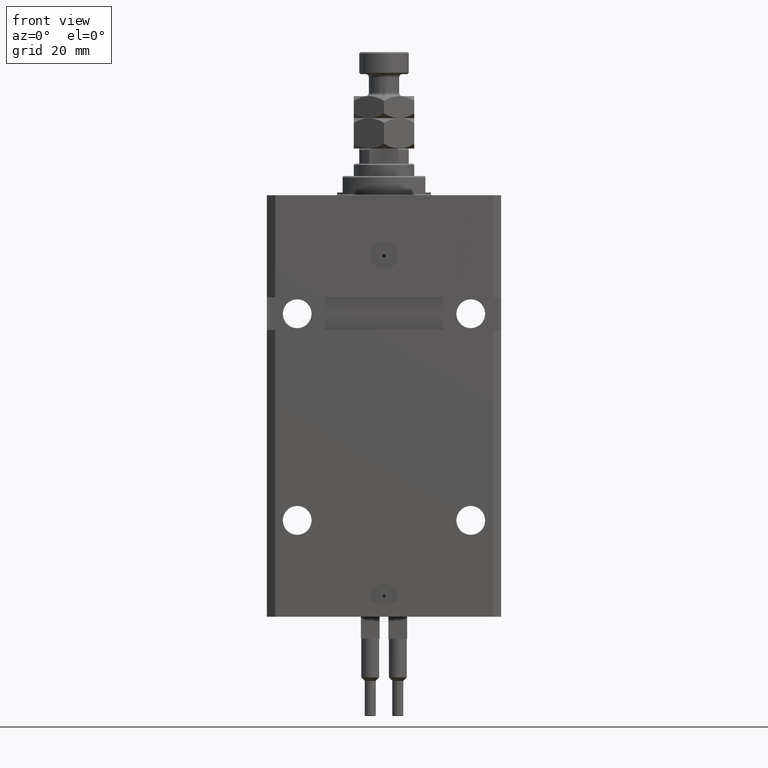
[diagram: clean part render]
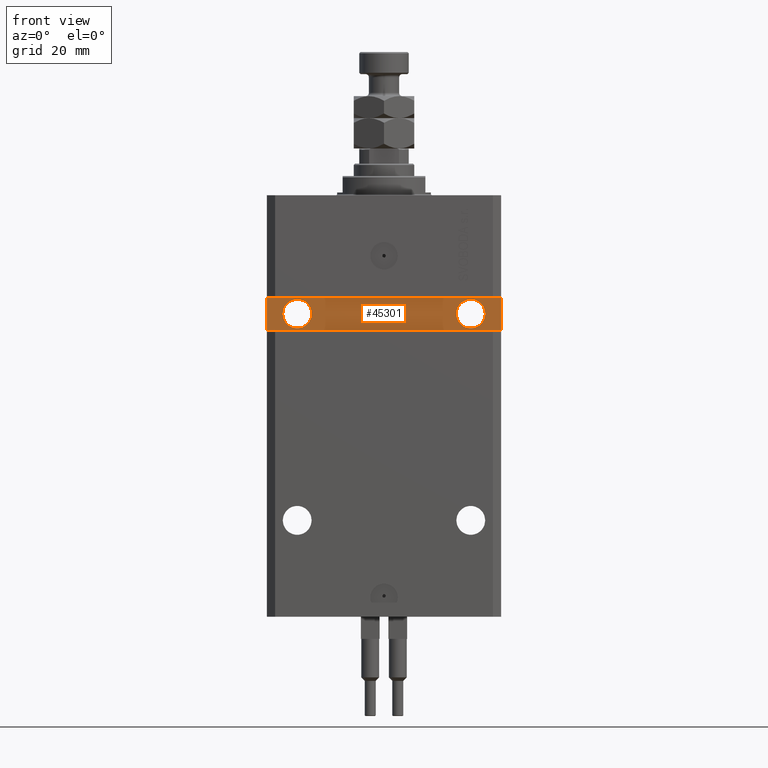
[diagram: same view with one face highlighted and labeled with its STEP entity id]
A machine part, front view. The second image highlights one B-rep face of the part: STEP entity #45301.
In plain terms, the highlighted planar face has unit normal (0, -1, 0).
Its self-contained STEP definition (entity closure, byte-faithful):
#65 = LINE ( 'NONE', #39178, #4987 ) ;
#559 = DIRECTION ( 'NONE',  ( 1.101411730780568590E-16, -1.000000000000000000, 0.000000000000000000 ) ) ;
#1619 = EDGE_LOOP ( 'NONE', ( #10034, #30624 ) ) ;
#2013 = VECTOR ( 'NONE', #2801, 1000.000000000000000 ) ;
#2801 = DIRECTION ( 'NONE',  ( 0.000000000000000000, 0.000000000000000000, -1.000000000000000000 ) ) ;
#2931 = DIRECTION ( 'NONE',  ( 0.000000000000000000, 0.000000000000000000, 1.000000000000000000 ) ) ;
#3793 = DIRECTION ( 'NONE',  ( 1.000000000000000000, 0.000000000000000000, 0.000000000000000000 ) ) ;
#4208 = CARTESIAN_POINT ( 'NONE',  ( 42.50000000000001421, -28.49999999999999289, -37.00000000000000000 ) ) ;
#4448 = LINE ( 'NONE', #4208, #24383 ) ;
#4892 = EDGE_CURVE ( 'NONE', #24375, #17585, #41807, .T. ) ;
#4987 = VECTOR ( 'NONE', #43544, 1000.000000000000000 ) ;
#6589 = AXIS2_PLACEMENT_3D ( 'NONE', #8661, #28859, #20402 ) ;
#6779 = CARTESIAN_POINT ( 'NONE',  ( 42.50000000000001421, -28.49999999999999289, -48.99999999999997868 ) ) ;
#8661 = CARTESIAN_POINT ( 'NONE',  ( 4.790119779726142858E-15, -28.50000000000000000, 0.000000000000000000 ) ) ;
#10034 = ORIENTED_EDGE ( 'NONE', *, *, #17891, .F. ) ;
#10734 = CARTESIAN_POINT ( 'NONE',  ( -42.50000000000001421, -28.50000000000000711, -37.00000000000000711 ) ) ;
#10815 = DIRECTION ( 'NONE',  ( 1.101411730780568590E-16, -1.000000000000000000, 0.000000000000000000 ) ) ;
#10977 = LINE ( 'NONE', #10734, #2013 ) ;
#12275 = DIRECTION ( 'NONE',  ( 1.000000000000000000, 0.000000000000000000, 0.000000000000000000 ) ) ;
#13865 = EDGE_CURVE ( 'NONE', #24899, #27347, #34606, .T. ) ;
#14767 = EDGE_CURVE ( 'NONE', #38737, #32874, #10977, .T. ) ;
#16897 = CARTESIAN_POINT ( 'NONE',  ( -31.49999999999998579, -28.50000000000000355, -43.00000000000000000 ) ) ;
#17053 = CARTESIAN_POINT ( 'NONE',  ( -42.50000000000001421, -28.50000000000000711, -48.99999999999999289 ) ) ;
#17585 = VERTEX_POINT ( 'NONE', #35128 ) ;
#17761 = EDGE_CURVE ( 'NONE', #26953, #43991, #30712, .T. ) ;
#17891 = EDGE_CURVE ( 'NONE', #43991, #26953, #38050, .T. ) ;
#19897 = PLANE ( 'NONE',  #6589 ) ;
#20019 = DIRECTION ( 'NONE',  ( -1.000000000000000000, -1.632680918566406054E-16, -8.163404592832030268E-17 ) ) ;
#20272 = ORIENTED_EDGE ( 'NONE', *, *, #13865, .F. ) ;
#20402 = DIRECTION ( 'NONE',  ( 1.000000000000000000, 1.632680918566406054E-16, 0.000000000000000000 ) ) ;
#20433 = ORIENTED_EDGE ( 'NONE', *, *, #4892, .T. ) ;
#20741 = AXIS2_PLACEMENT_3D ( 'NONE', #38819, #26533, #3793 ) ;
#20822 = CARTESIAN_POINT ( 'NONE',  ( -26.24999999999998934, -28.50000000000000355, -43.00000000000000000 ) ) ;
#20925 = CARTESIAN_POINT ( 'NONE',  ( 26.25000000000001776, -28.49999999999999645, -43.00000000000000000 ) ) ;
#24375 = VERTEX_POINT ( 'NONE', #35644 ) ;
#24383 = VECTOR ( 'NONE', #20019, 1000.000000000000000 ) ;
#24400 = VECTOR ( 'NONE', #2931, 1000.000000000000000 ) ;
#24899 = VERTEX_POINT ( 'NONE', #20925 ) ;
#26533 = DIRECTION ( 'NONE',  ( 1.037025423586453576E-16, -1.000000000000000000, 0.000000000000000000 ) ) ;
#26848 = ORIENTED_EDGE ( 'NONE', *, *, #49100, .T. ) ;
#26953 = VERTEX_POINT ( 'NONE', #46500 ) ;
#27347 = VERTEX_POINT ( 'NONE', #31332 ) ;
#27831 = FACE_BOUND ( 'NONE', #1619, .T. ) ;
#28117 = EDGE_CURVE ( 'NONE', #27347, #24899, #31771, .T. ) ;
#28859 = DIRECTION ( 'NONE',  ( 1.632680918566406054E-16, -1.000000000000000000, 0.000000000000000000 ) ) ;
#30624 = ORIENTED_EDGE ( 'NONE', *, *, #17761, .F. ) ;
#30712 = CIRCLE ( 'NONE', #48697, 5.249999999999997335 ) ;
#31332 = CARTESIAN_POINT ( 'NONE',  ( 36.75000000000001421, -28.49999999999999645, -43.00000000000000000 ) ) ;
#31771 = CIRCLE ( 'NONE', #45657, 5.249999999999997335 ) ;
#32874 = VERTEX_POINT ( 'NONE', #17053 ) ;
#34606 = CIRCLE ( 'NONE', #20741, 5.249999999999997335 ) ;
#34765 = DIRECTION ( 'NONE',  ( 1.037025423586453576E-16, -1.000000000000000000, 0.000000000000000000 ) ) ;
#34849 = ORIENTED_EDGE ( 'NONE', *, *, #28117, .F. ) ;
#35128 = CARTESIAN_POINT ( 'NONE',  ( 42.50000000000001421, -28.49999999999999289, -37.00000000000000000 ) ) ;
#35644 = CARTESIAN_POINT ( 'NONE',  ( 42.50000000000001421, -28.49999999999999289, -48.99999999999997868 ) ) ;
#36269 = FACE_BOUND ( 'NONE', #38807, .T. ) ;
#38050 = CIRCLE ( 'NONE', #38864, 5.249999999999997335 ) ;
#38504 = ORIENTED_EDGE ( 'NONE', *, *, #14767, .T. ) ;
#38737 = VERTEX_POINT ( 'NONE', #49675 ) ;
#38807 = EDGE_LOOP ( 'NONE', ( #34849, #20272 ) ) ;
#38819 = CARTESIAN_POINT ( 'NONE',  ( 31.50000000000001421, -28.49999999999999645, -43.00000000000000000 ) ) ;
#38864 = AXIS2_PLACEMENT_3D ( 'NONE', #16897, #559, #39936 ) ;
#38917 = CARTESIAN_POINT ( 'NONE',  ( -31.49999999999998579, -28.50000000000000355, -43.00000000000000000 ) ) ;
#39178 = CARTESIAN_POINT ( 'NONE',  ( -42.50000000000001421, -28.50000000000000711, -48.99999999999999289 ) ) ;
#39936 = DIRECTION ( 'NONE',  ( 1.000000000000000000, 0.000000000000000000, 0.000000000000000000 ) ) ;
#41146 = EDGE_LOOP ( 'NONE', ( #26848, #20433, #47422, #38504 ) ) ;
#41807 = LINE ( 'NONE', #6779, #24400 ) ;
#41817 = EDGE_CURVE ( 'NONE', #17585, #38737, #4448, .T. ) ;
#43544 = DIRECTION ( 'NONE',  ( 1.000000000000000000, 1.632680918566406054E-16, 1.632680918566406054E-16 ) ) ;
#43991 = VERTEX_POINT ( 'NONE', #20822 ) ;
#45301 = ADVANCED_FACE ( 'NONE', ( #36269, #27831, #48318 ), #19897, .T. ) ;
#45657 = AXIS2_PLACEMENT_3D ( 'NONE', #47339, #34765, #12275 ) ;
#46500 = CARTESIAN_POINT ( 'NONE',  ( -36.74999999999998579, -28.50000000000000355, -43.00000000000000000 ) ) ;
#47339 = CARTESIAN_POINT ( 'NONE',  ( 31.50000000000001421, -28.49999999999999645, -43.00000000000000000 ) ) ;
#47422 = ORIENTED_EDGE ( 'NONE', *, *, #41817, .T. ) ;
#48318 = FACE_OUTER_BOUND ( 'NONE', #41146, .T. ) ;
#48697 = AXIS2_PLACEMENT_3D ( 'NONE', #38917, #10815, #49949 ) ;
#49100 = EDGE_CURVE ( 'NONE', #32874, #24375, #65, .T. ) ;
#49675 = CARTESIAN_POINT ( 'NONE',  ( -42.50000000000001421, -28.50000000000000711, -37.00000000000000711 ) ) ;
#49949 = DIRECTION ( 'NONE',  ( 1.000000000000000000, 0.000000000000000000, 0.000000000000000000 ) ) ;